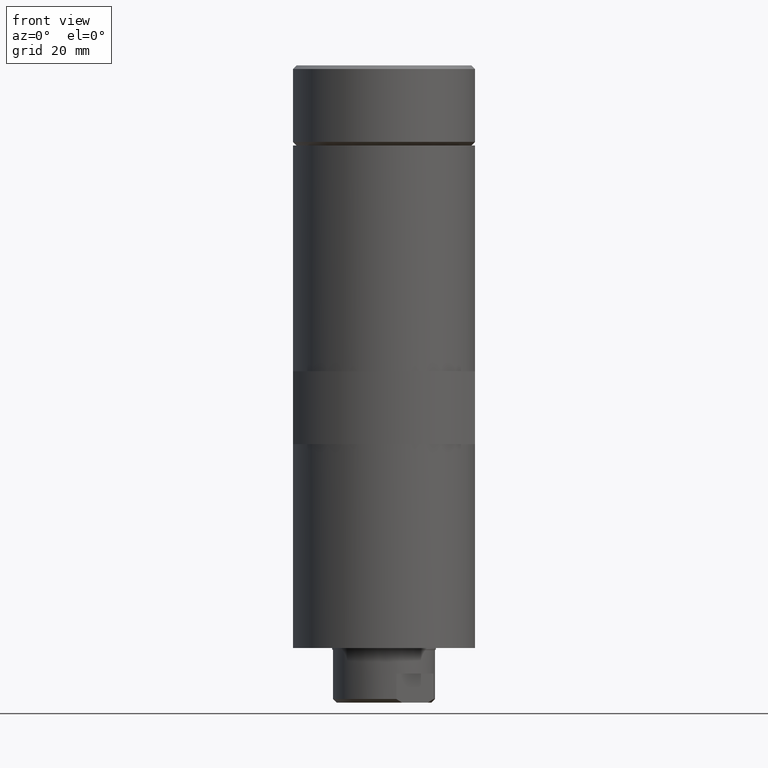
[diagram: clean part render]
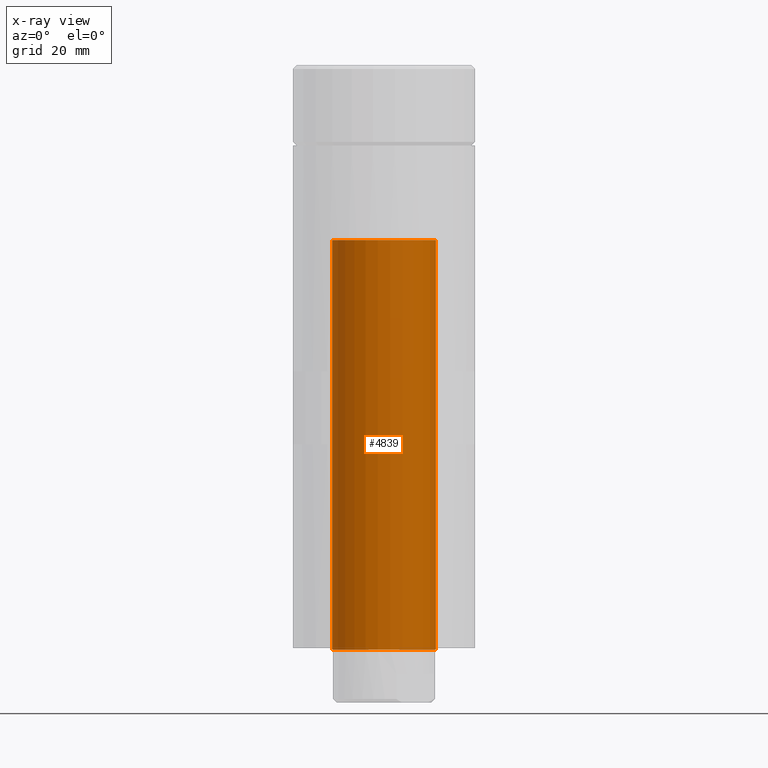
[diagram: x-ray — body ghosted, one internal face saturated and labeled with its STEP entity id]
A machine part, front view, then the same camera in x-ray: the body is ghosted and one INTERNAL B-rep face — a face not visible from any outside direction — is saturated and labeled: STEP entity #4839.
In plain terms, the highlighted cylindrical surface (partial cylindrical patch) has radius 14.25 mm, axis along (-0, 0, 1).
Its self-contained STEP definition (entity closure, byte-faithful):
#195 = VERTEX_POINT ( 'NONE', #2876 ) ;
#454 = CARTESIAN_POINT ( 'NONE',  ( 14.25000000000000000, -7.951863415942998000E-016, 5.124683141629089900 ) ) ;
#545 = VERTEX_POINT ( 'NONE', #3795 ) ;
#701 = VERTEX_POINT ( 'NONE', #454 ) ;
#864 = CIRCLE ( 'NONE', #3993, 14.25000000000000000 ) ;
#870 = FACE_OUTER_BOUND ( 'NONE', #2431, .T. ) ;
#971 = DIRECTION ( 'NONE',  ( -2.574111338686254700E-017, 1.038109137218903900E-017, 1.000000000000000000 ) ) ;
#1270 = LINE ( 'NONE', #6225, #5220 ) ;
#1364 = LINE ( 'NONE', #4063, #2731 ) ;
#1459 = ORIENTED_EDGE ( 'NONE', *, *, #4042, .T. ) ;
#1630 = DIRECTION ( 'NONE',  ( 1.000000000000000000, -5.551115123125779000E-017, 0.0000000000000000000 ) ) ;
#1703 = DIRECTION ( 'NONE',  ( -2.574111338686254700E-017, 1.038109137218903900E-017, 1.000000000000000000 ) ) ;
#1862 = DIRECTION ( 'NONE',  ( 1.000000000000000000, -5.551115123125779000E-017, 0.0000000000000000000 ) ) ;
#1908 = ORIENTED_EDGE ( 'NONE', *, *, #6471, .F. ) ;
#2431 = EDGE_LOOP ( 'NONE', ( #1908, #5440, #1459, #3920 ) ) ;
#2731 = VECTOR ( 'NONE', #971, 1000.000000000000000 ) ;
#2876 = CARTESIAN_POINT ( 'NONE',  ( 14.24999999999999600, 3.716483286397482500E-016, 117.5246831416290000 ) ) ;
#3392 = AXIS2_PLACEMENT_3D ( 'NONE', #4399, #4354, #1862 ) ;
#3795 = CARTESIAN_POINT ( 'NONE',  ( -14.25000000000000500, 3.115420492398550900E-015, 117.5246831416290000 ) ) ;
#3866 = CYLINDRICAL_SURFACE ( 'NONE', #4065, 14.25000000000000000 ) ;
#3920 = ORIENTED_EDGE ( 'NONE', *, *, #6577, .F. ) ;
#3993 = AXIS2_PLACEMENT_3D ( 'NONE', #4767, #6343, #4743 ) ;
#4042 = EDGE_CURVE ( 'NONE', #701, #195, #1364, .T. ) ;
#4063 = CARTESIAN_POINT ( 'NONE',  ( 14.24999999999999600, 3.716483286397482500E-016, 117.5246831416290000 ) ) ;
#4065 = AXIS2_PLACEMENT_3D ( 'NONE', #4277, #1703, #1630 ) ;
#4277 = CARTESIAN_POINT ( 'NONE',  ( -2.883004699328604900E-015, 1.162682233685171800E-015, 117.5246831416290000 ) ) ;
#4354 = DIRECTION ( 'NONE',  ( -2.574111338686254700E-017, 1.038109137218903900E-017, 1.000000000000000000 ) ) ;
#4399 = CARTESIAN_POINT ( 'NONE',  ( -2.883004699328604900E-015, 1.162682233685171800E-015, 117.5246831416290000 ) ) ;
#4619 = CARTESIAN_POINT ( 'NONE',  ( -14.25000000000000000, 3.115420492398550500E-015, 5.124683141629089900 ) ) ;
#4735 = CIRCLE ( 'NONE', #3392, 14.25000000000000000 ) ;
#4743 = DIRECTION ( 'NONE',  ( 1.000000000000000000, -5.551115123125779000E-017, 0.0000000000000000000 ) ) ;
#4767 = CARTESIAN_POINT ( 'NONE',  ( 1.029644535474462100E-017, -4.152436548876180300E-018, 5.124683141629089900 ) ) ;
#4839 = ADVANCED_FACE ( 'NONE', ( #870 ), #3866, .T. ) ;
#5220 = VECTOR ( 'NONE', #6272, 1000.000000000000000 ) ;
#5440 = ORIENTED_EDGE ( 'NONE', *, *, #6014, .T. ) ;
#5492 = VERTEX_POINT ( 'NONE', #4619 ) ;
#6014 = EDGE_CURVE ( 'NONE', #5492, #701, #864, .T. ) ;
#6225 = CARTESIAN_POINT ( 'NONE',  ( -14.25000000000000400, 3.698837827515574400E-015, 117.5246831416290000 ) ) ;
#6272 = DIRECTION ( 'NONE',  ( -2.574111338686254700E-017, 1.038109137218903900E-017, 1.000000000000000000 ) ) ;
#6343 = DIRECTION ( 'NONE',  ( -2.574111338686254700E-017, 1.038109137218903900E-017, 1.000000000000000000 ) ) ;
#6471 = EDGE_CURVE ( 'NONE', #5492, #545, #1270, .T. ) ;
#6577 = EDGE_CURVE ( 'NONE', #545, #195, #4735, .T. ) ;